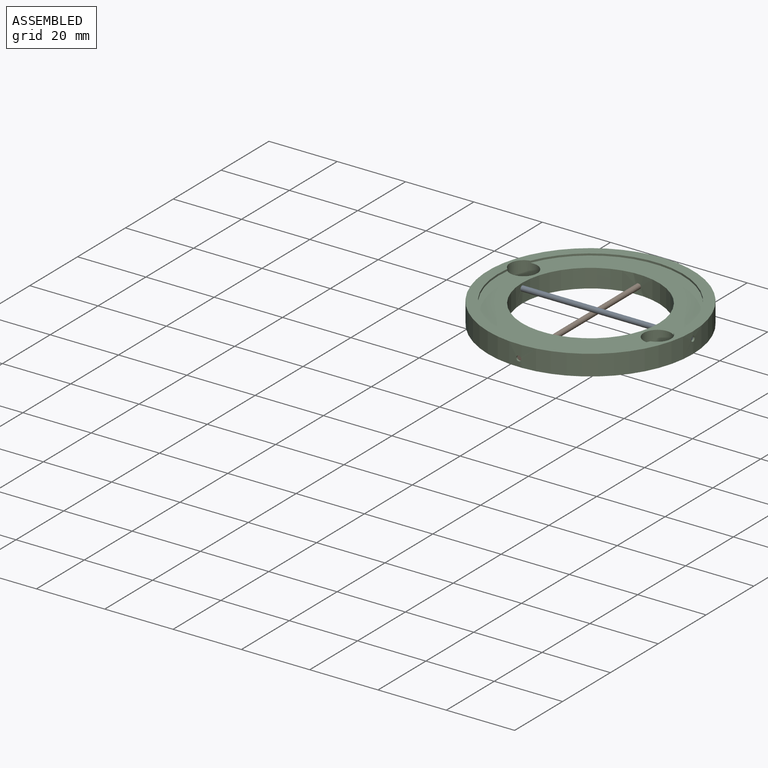
[diagram: assembled view]
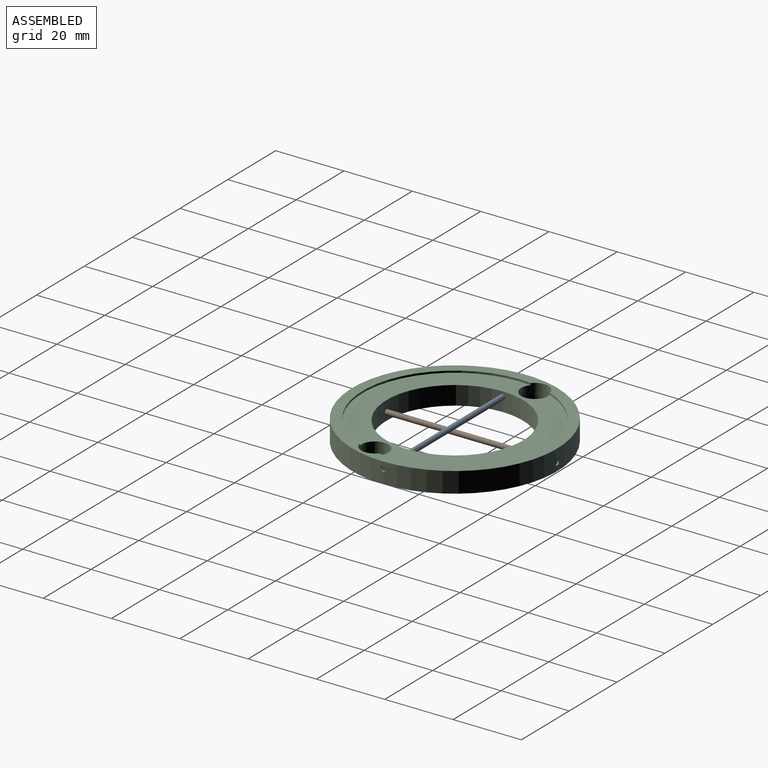
[diagram: assembled view, second angle]
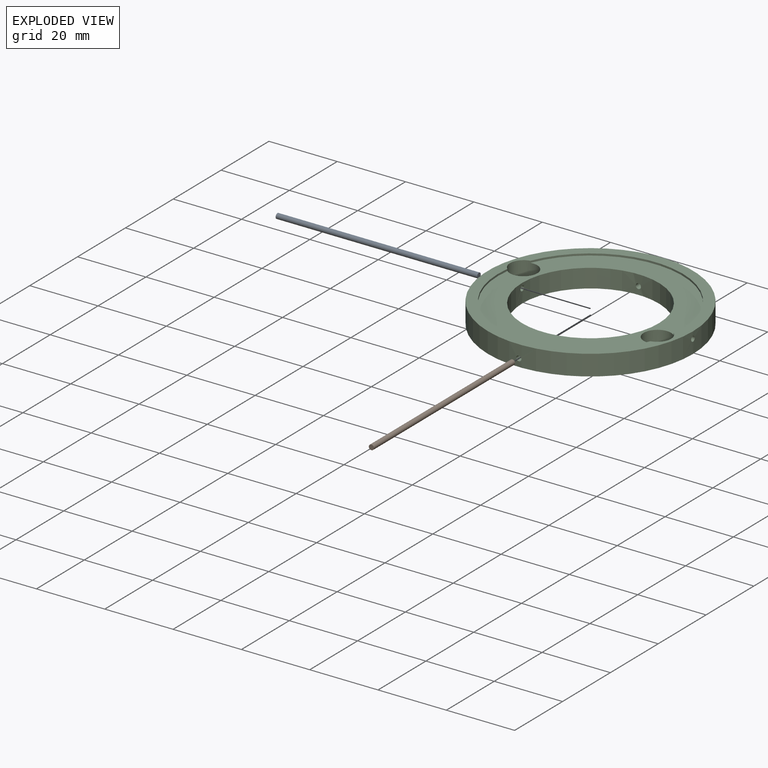
[diagram: exploded view]
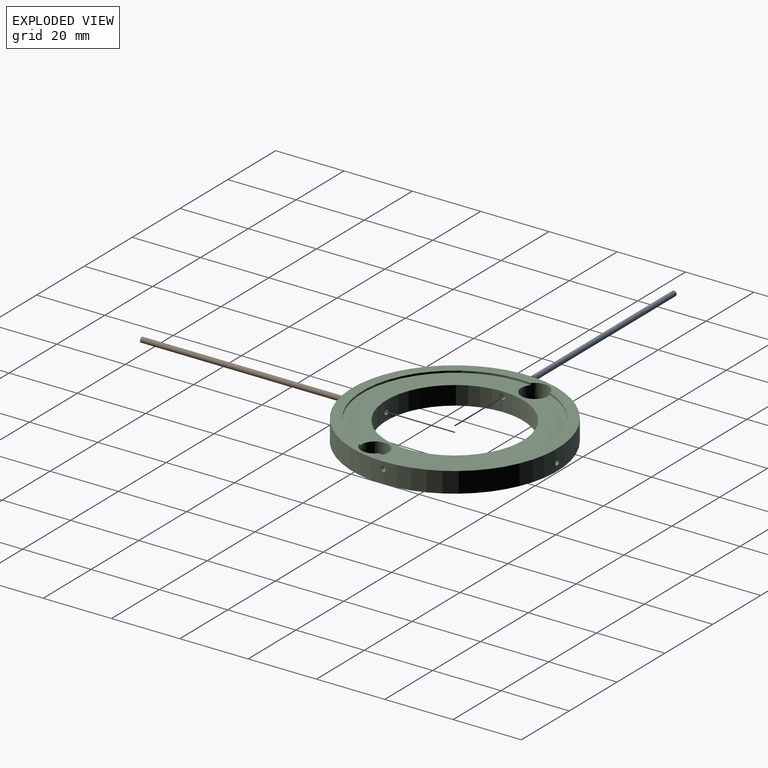
[diagram: exploded view, second angle]
ASSEMBLY  parts=3 mates=2
PART A: 3 faces, bbox 1.5x59x1.5 mm
  f0: cylinder r=0.75mm len=59mm, axis (0,1,0), area 278mm2, adj f1,f2
  f1: plane 1.5x1.5mm, normal (0,-1,0), area 1.8mm2, adj f0
  f2: plane 1.5x1.5mm, normal (0,1,0), area 1.8mm2, adj f0
PART B: same geometry as A
PART C: 17 faces, bbox 60x60x6 mm
  f0: cylinder r=27mm len=51.91mm, axis (0,0,1), area 42.7mm2, adj f3,f6,f11,f13
  f1: cylinder r=0.75mm len=10.01mm, axis (0,-1,0), area 47.2mm2, adj f2,f8
  f2: cylinder r=30mm len=60mm, axis (0,0,-1), area 1123.9mm2, adj f1,f3,f4,f7,f9,f10
  f3: plane 60x60mm, normal (0,0,1), area 516.5mm2, adj f0,f2,f5,f11,f13
  f4: plane 60x60mm, normal (0,0,-1), area 1544.4mm2, adj f2,f8,f15,f16
  f5: cylinder r=27mm len=51.91mm, axis (0,0,1), area 42.7mm2, adj f3,f6,f11,f13
  f6: plane 54x54mm, normal (0,0,1), area 953.8mm2, adj f0,f5,f8,f11,f13
  f7: cylinder r=0.75mm len=10.01mm, axis (0,-1,0), area 47.2mm2, adj f2,f8
  f8: cylinder r=20mm len=40mm, axis (0,0,1), area 677.8mm2, adj f1,f4,f6,f7,f9,f10
  f9: cylinder r=0.75mm len=10.01mm, axis (1,0,0), area 47.2mm2, adj f2,f8
  f10: cylinder r=0.75mm len=10.01mm, axis (1,0,0), area 47.2mm2, adj f2,f8
  f11: cylinder r=4mm len=8mm, axis (0,0,1), area 104.2mm2, adj f0,f3,f5,f6,f12
  f12: plane 8x8mm, normal (0,0,1), area 37.1mm2, adj f11,f15
  f13: cylinder r=4mm len=8mm, axis (0,0,1), area 104.2mm2, adj f0,f3,f5,f6,f14
  f14: plane 8x8mm, normal (0,0,1), area 37.1mm2, adj f13,f16
  f15: cylinder r=2.05mm len=4.1mm, axis (0,0,1), area 19.3mm2, adj f4,f12
  f16: cylinder r=2.05mm len=4.1mm, axis (0,0,1), area 19.3mm2, adj f4,f14
PLACE A rot(axis=(0,0,-1),90deg) t=(20.74,-1.6,4.55)mm
PLACE B t=(-8.71,27.87,2.81)mm
PLACE C t=(-8.71,-1.6,0.55)mm
MATE cylindrical A.f0 <-> C.f9  axis (1,0,0) through (20.74,-1.6,4.55)mm
MATE cylindrical C.f1 <-> B.f0  axis (0,-1,0) through (-8.71,-31.67,2.81)mm
